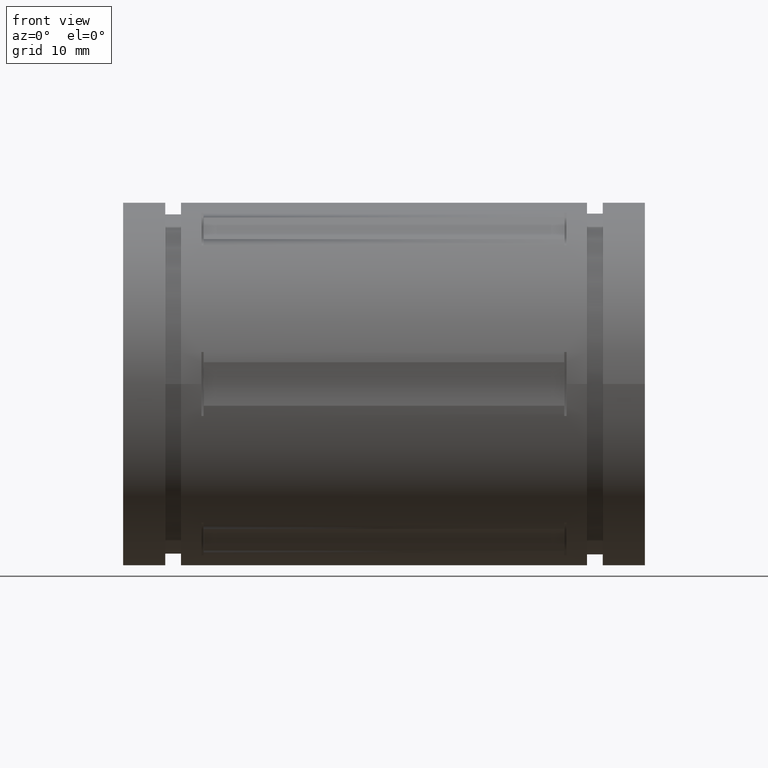
[diagram: clean part render]
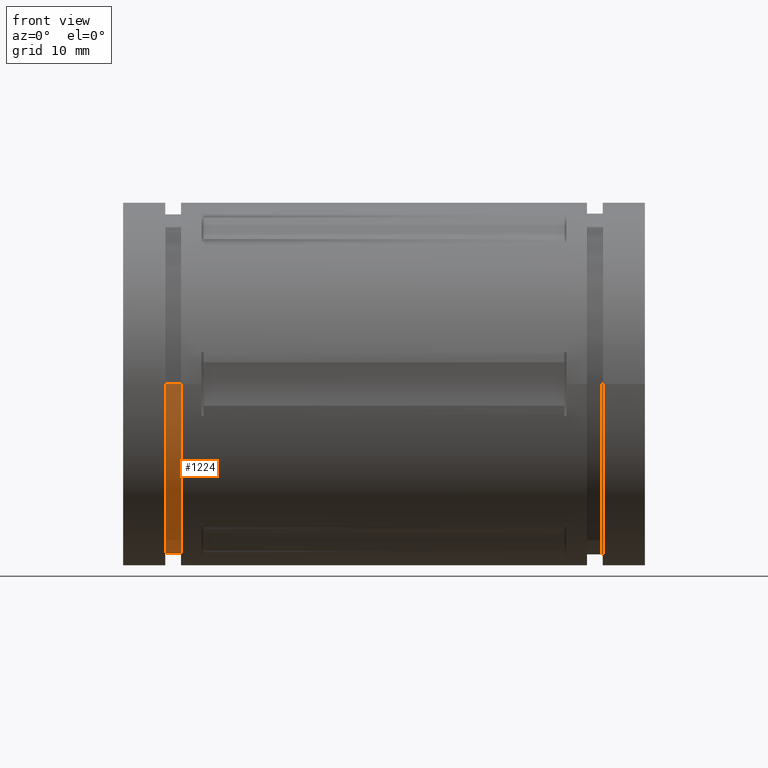
[diagram: same view with one face highlighted and labeled with its STEP entity id]
A machine part, front view. The second image highlights one B-rep face of the part: STEP entity #1224.
In plain terms, the highlighted cylindrical surface (partial cylindrical patch) has radius 18.652 mm, axis along (1, 0, 0).
Its self-contained STEP definition (entity closure, byte-faithful):
#66 = DIRECTION ( 'NONE',  ( 0.0000000000000000000, 1.000000000000000000, 0.0000000000000000000 ) ) ;
#67 = DIRECTION ( 'NONE',  ( -1.000000000000000000, -2.325117247449076500E-017, -0.0000000000000000000 ) ) ;
#68 = CARTESIAN_POINT ( 'NONE',  ( 0.1820866141732282500, -1.578791227037571400E-018, 0.0000000000000000000 ) ) ;
#107 = CARTESIAN_POINT ( 'NONE',  ( 0.1820866141732282500, 0.7343307086614173600, 0.0000000000000000000 ) ) ;
#153 = AXIS2_PLACEMENT_3D ( 'NONE', #573, #518, #447 ) ;
#178 = EDGE_CURVE ( 'NONE', #734, #1797, #1784, .T. ) ;
#236 = EDGE_CURVE ( 'NONE', #1347, #1797, #1748, .T. ) ;
#324 = CARTESIAN_POINT ( 'NONE',  ( 0.2499881889763780100, -0.7343307086614173600, 8.992957518778124300E-017 ) ) ;
#363 = ORIENTED_EDGE ( 'NONE', *, *, #892, .T. ) ;
#447 = DIRECTION ( 'NONE',  ( 0.0000000000000000000, 1.000000000000000000, 0.0000000000000000000 ) ) ;
#454 = CARTESIAN_POINT ( 'NONE',  ( 0.1820866141732282500, -0.7343307086614173600, 8.992957518778124300E-017 ) ) ;
#518 = DIRECTION ( 'NONE',  ( -1.000000000000000000, -2.325117247449076500E-017, -0.0000000000000000000 ) ) ;
#537 = DIRECTION ( 'NONE',  ( 1.000000000000000000, 2.325117247449076200E-017, 0.0000000000000000000 ) ) ;
#573 = CARTESIAN_POINT ( 'NONE',  ( 0.2499881889763779500, -3.969916804673708500E-034, 0.0000000000000000000 ) ) ;
#588 = CARTESIAN_POINT ( 'NONE',  ( 0.2499881889763779800, 0.0000000000000000000, 0.0000000000000000000 ) ) ;
#595 = DIRECTION ( 'NONE',  ( -4.650234494898153100E-017, 1.000000000000000000, 0.0000000000000000000 ) ) ;
#600 = DIRECTION ( 'NONE',  ( 1.000000000000000000, 2.325117247449076500E-017, 0.0000000000000000000 ) ) ;
#661 = AXIS2_PLACEMENT_3D ( 'NONE', #68, #67, #66 ) ;
#734 = VERTEX_POINT ( 'NONE', #1115 ) ;
#892 = EDGE_CURVE ( 'NONE', #1776, #734, #1432, .T. ) ;
#893 = AXIS2_PLACEMENT_3D ( 'NONE', #588, #600, #595 ) ;
#899 = CARTESIAN_POINT ( 'NONE',  ( 0.2499881889763779500, 0.7343307086614173600, 0.0000000000000000000 ) ) ;
#936 = DIRECTION ( 'NONE',  ( 1.000000000000000000, 2.325117247449076200E-017, 0.0000000000000000000 ) ) ;
#1025 = CIRCLE ( 'NONE', #661, 0.7343307086614173600 ) ;
#1115 = CARTESIAN_POINT ( 'NONE',  ( 0.2499881889763779500, 0.7343307086614173600, 0.0000000000000000000 ) ) ;
#1183 = ORIENTED_EDGE ( 'NONE', *, *, #236, .F. ) ;
#1224 = ADVANCED_FACE ( 'NONE', ( #1326 ), #1305, .T. ) ;
#1305 = CYLINDRICAL_SURFACE ( 'NONE', #893, 0.7343307086614173600 ) ;
#1326 = FACE_OUTER_BOUND ( 'NONE', #1618, .T. ) ;
#1347 = VERTEX_POINT ( 'NONE', #454 ) ;
#1362 = CARTESIAN_POINT ( 'NONE',  ( 0.2499881889763779500, -0.7343307086614173600, 8.992957518778124300E-017 ) ) ;
#1426 = VECTOR ( 'NONE', #936, 39.37007874015748100 ) ;
#1432 = LINE ( 'NONE', #899, #1426 ) ;
#1618 = EDGE_LOOP ( 'NONE', ( #1183, #1694, #363, #1927 ) ) ;
#1654 = EDGE_CURVE ( 'NONE', #1776, #1347, #1025, .T. ) ;
#1694 = ORIENTED_EDGE ( 'NONE', *, *, #1654, .F. ) ;
#1746 = VECTOR ( 'NONE', #537, 39.37007874015748100 ) ;
#1748 = LINE ( 'NONE', #324, #1746 ) ;
#1776 = VERTEX_POINT ( 'NONE', #107 ) ;
#1784 = CIRCLE ( 'NONE', #153, 0.7343307086614173600 ) ;
#1797 = VERTEX_POINT ( 'NONE', #1362 ) ;
#1927 = ORIENTED_EDGE ( 'NONE', *, *, #178, .T. ) ;